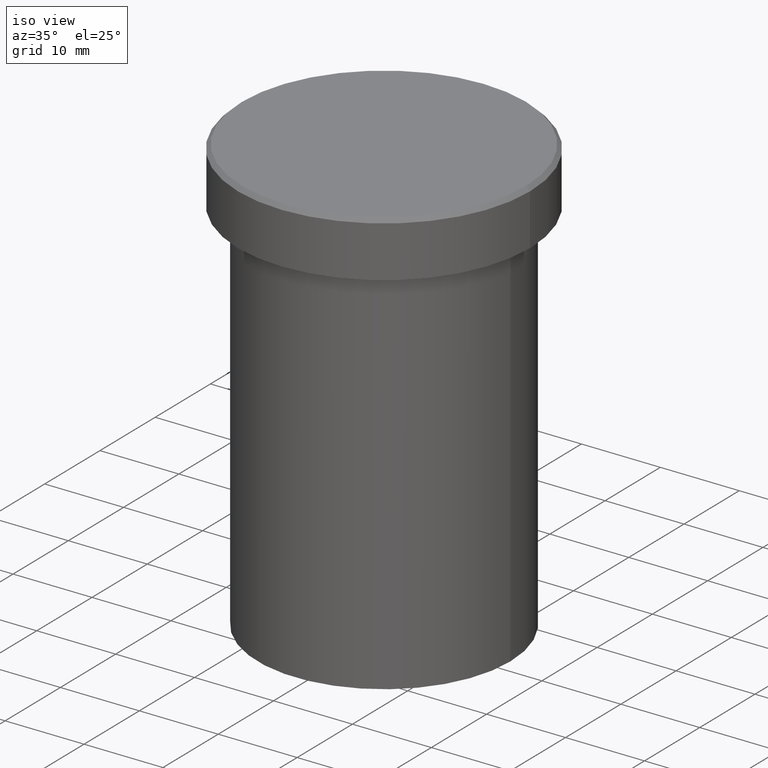
[diagram: clean part render]
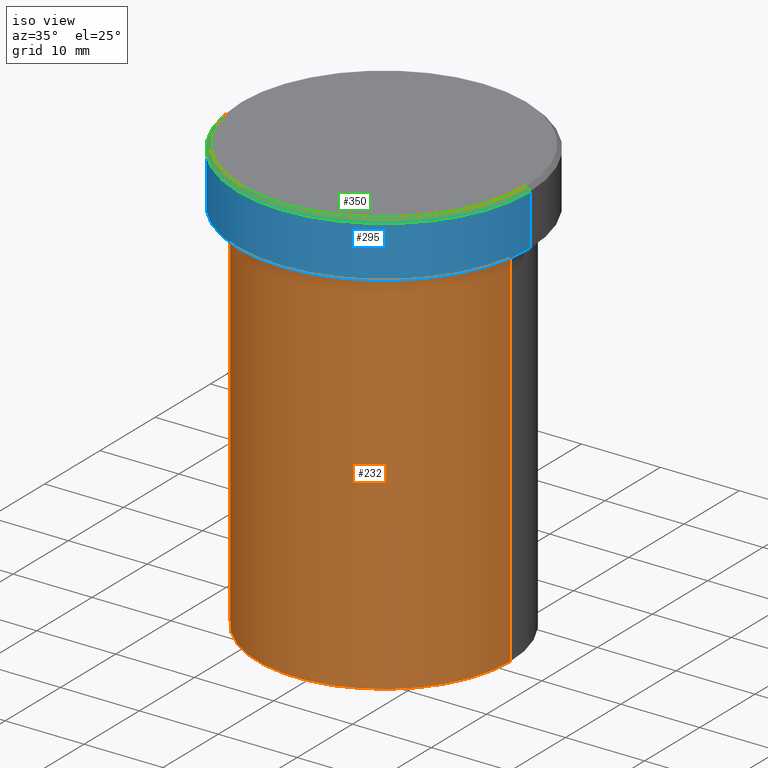
[diagram: same view with three faces highlighted in distinct colors, each labeled with its STEP entity id]
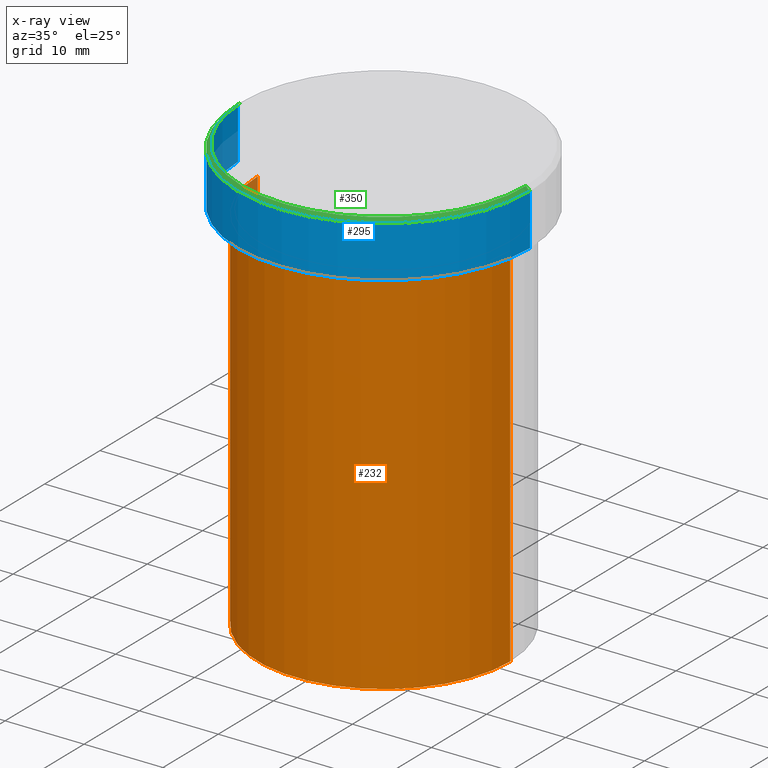
[diagram: x-ray of the same camera — body ghosted, the three highlighted faces saturated]
A machine part, iso view with three faces highlighted in distinct colors.
The next image is the same camera in x-ray (body ghosted, the three faces saturated) — at least one of them is partly hidden behind the body in this view.
Their STEP definitions:

[orange] entity #232 — the highlighted cylindrical surface (partial cylindrical patch) has radius 16 mm, axis along (-0, -0, 1).
#12 = EDGE_CURVE ( 'NONE', #120, #148, #29, .T. ) ;
#17 = DIRECTION ( 'NONE',  ( 1.000000000000000000, 0.000000000000000000, 0.000000000000000000 ) ) ;
#29 = LINE ( 'NONE', #382, #145 ) ;
#41 = DIRECTION ( 'NONE',  ( -0.000000000000000000, -0.000000000000000000, 1.000000000000000000 ) ) ;
#50 = AXIS2_PLACEMENT_3D ( 'NONE', #217, #62, #280 ) ;
#61 = AXIS2_PLACEMENT_3D ( 'NONE', #368, #178, #17 ) ;
#62 = DIRECTION ( 'NONE',  ( -0.000000000000000000, -0.000000000000000000, 1.000000000000000000 ) ) ;
#69 = ORIENTED_EDGE ( 'NONE', *, *, #12, .T. ) ;
#83 = DIRECTION ( 'NONE',  ( 1.000000000000000000, 0.000000000000000000, 0.000000000000000000 ) ) ;
#84 = EDGE_LOOP ( 'NONE', ( #273, #90, #69, #99 ) ) ;
#90 = ORIENTED_EDGE ( 'NONE', *, *, #112, .T. ) ;
#91 = CYLINDRICAL_SURFACE ( 'NONE', #167, 16.00000000000000000 ) ;
#99 = ORIENTED_EDGE ( 'NONE', *, *, #265, .F. ) ;
#100 = DIRECTION ( 'NONE',  ( -0.000000000000000000, -0.000000000000000000, 1.000000000000000000 ) ) ;
#106 = CIRCLE ( 'NONE', #61, 16.00000000000000000 ) ;
#112 = EDGE_CURVE ( 'NONE', #329, #120, #196, .T. ) ;
#113 = CARTESIAN_POINT ( 'NONE',  ( 0.000000000000000000, 0.000000000000000000, 0.000000000000000000 ) ) ;
#120 = VERTEX_POINT ( 'NONE', #355 ) ;
#135 = EDGE_CURVE ( 'NONE', #329, #248, #323, .T. ) ;
#142 = CARTESIAN_POINT ( 'NONE',  ( -16.00000000000000000, 1.959434878635765131E-15, -8.000000000000000000 ) ) ;
#145 = VECTOR ( 'NONE', #100, 1000.000000000000000 ) ;
#148 = VERTEX_POINT ( 'NONE', #259 ) ;
#167 = AXIS2_PLACEMENT_3D ( 'NONE', #113, #303, #83 ) ;
#178 = DIRECTION ( 'NONE',  ( -0.000000000000000000, -0.000000000000000000, 1.000000000000000000 ) ) ;
#195 = CARTESIAN_POINT ( 'NONE',  ( -16.00000000000000000, 1.959434878635765131E-15, 0.000000000000000000 ) ) ;
#196 = CIRCLE ( 'NONE', #50, 16.00000000000000000 ) ;
#217 = CARTESIAN_POINT ( 'NONE',  ( 0.000000000000000000, 0.000000000000000000, -54.99999999999999289 ) ) ;
#232 = ADVANCED_FACE ( 'NONE', ( #342 ), #91, .T. ) ;
#236 = CARTESIAN_POINT ( 'NONE',  ( -16.00000000000000000, 1.959434878635765131E-15, -54.99999999999999289 ) ) ;
#248 = VERTEX_POINT ( 'NONE', #142 ) ;
#259 = CARTESIAN_POINT ( 'NONE',  ( 16.00000000000000000, 0.000000000000000000, -8.000000000000000000 ) ) ;
#265 = EDGE_CURVE ( 'NONE', #248, #148, #106, .T. ) ;
#273 = ORIENTED_EDGE ( 'NONE', *, *, #135, .F. ) ;
#280 = DIRECTION ( 'NONE',  ( 1.000000000000000000, 0.000000000000000000, 0.000000000000000000 ) ) ;
#303 = DIRECTION ( 'NONE',  ( -0.000000000000000000, -0.000000000000000000, 1.000000000000000000 ) ) ;
#323 = LINE ( 'NONE', #195, #343 ) ;
#329 = VERTEX_POINT ( 'NONE', #236 ) ;
#342 = FACE_OUTER_BOUND ( 'NONE', #84, .T. ) ;
#343 = VECTOR ( 'NONE', #41, 1000.000000000000000 ) ;
#355 = CARTESIAN_POINT ( 'NONE',  ( 16.00000000000000000, 0.000000000000000000, -54.99999999999999289 ) ) ;
#368 = CARTESIAN_POINT ( 'NONE',  ( 0.000000000000000000, 0.000000000000000000, -8.000000000000000000 ) ) ;
#382 = CARTESIAN_POINT ( 'NONE',  ( 16.00000000000000000, 0.000000000000000000, 0.000000000000000000 ) ) ;

[blue] entity #295 — the highlighted cylindrical surface (partial cylindrical patch) has radius 18.5 mm, axis along (-0, -0, 1).
#4 = CARTESIAN_POINT ( 'NONE',  ( -18.50000000000000000, 2.265596578422603396E-15, -0.5000000000000143219 ) ) ;
#10 = LINE ( 'NONE', #346, #45 ) ;
#28 = CARTESIAN_POINT ( 'NONE',  ( 18.50000000000000000, 0.000000000000000000, -6.999999999999999112 ) ) ;
#31 = EDGE_CURVE ( 'NONE', #49, #375, #122, .T. ) ;
#39 = ORIENTED_EDGE ( 'NONE', *, *, #74, .F. ) ;
#45 = VECTOR ( 'NONE', #255, 1000.000000000000000 ) ;
#47 = CARTESIAN_POINT ( 'NONE',  ( -18.50000000000000000, 2.265596578422603396E-15, -6.999999999999999112 ) ) ;
#49 = VERTEX_POINT ( 'NONE', #126 ) ;
#71 = ORIENTED_EDGE ( 'NONE', *, *, #155, .T. ) ;
#74 = EDGE_CURVE ( 'NONE', #181, #375, #10, .T. ) ;
#76 = VECTOR ( 'NONE', #234, 1000.000000000000000 ) ;
#89 = EDGE_CURVE ( 'NONE', #181, #315, #275, .T. ) ;
#102 = CARTESIAN_POINT ( 'NONE',  ( 0.000000000000000000, 0.000000000000000000, -0.5000000000000143219 ) ) ;
#111 = DIRECTION ( 'NONE',  ( 1.000000000000000000, 0.000000000000000000, 0.000000000000000000 ) ) ;
#122 = CIRCLE ( 'NONE', #132, 18.50000000000000000 ) ;
#126 = CARTESIAN_POINT ( 'NONE',  ( 18.50000000000000000, 0.000000000000000000, -0.5000000000000143219 ) ) ;
#128 = DIRECTION ( 'NONE',  ( 1.000000000000000000, 0.000000000000000000, 0.000000000000000000 ) ) ;
#132 = AXIS2_PLACEMENT_3D ( 'NONE', #102, #318, #287 ) ;
#155 = EDGE_CURVE ( 'NONE', #315, #49, #226, .T. ) ;
#177 = ORIENTED_EDGE ( 'NONE', *, *, #89, .T. ) ;
#181 = VERTEX_POINT ( 'NONE', #47 ) ;
#226 = LINE ( 'NONE', #403, #76 ) ;
#228 = AXIS2_PLACEMENT_3D ( 'NONE', #291, #386, #128 ) ;
#234 = DIRECTION ( 'NONE',  ( -0.000000000000000000, -0.000000000000000000, 1.000000000000000000 ) ) ;
#241 = AXIS2_PLACEMENT_3D ( 'NONE', #268, #311, #111 ) ;
#245 = ORIENTED_EDGE ( 'NONE', *, *, #31, .T. ) ;
#246 = FACE_OUTER_BOUND ( 'NONE', #349, .T. ) ;
#255 = DIRECTION ( 'NONE',  ( -0.000000000000000000, -0.000000000000000000, 1.000000000000000000 ) ) ;
#268 = CARTESIAN_POINT ( 'NONE',  ( 0.000000000000000000, 0.000000000000000000, 0.000000000000000000 ) ) ;
#275 = CIRCLE ( 'NONE', #228, 18.50000000000000000 ) ;
#287 = DIRECTION ( 'NONE',  ( 1.000000000000000000, 0.000000000000000000, 0.000000000000000000 ) ) ;
#291 = CARTESIAN_POINT ( 'NONE',  ( 0.000000000000000000, 0.000000000000000000, -6.999999999999999112 ) ) ;
#295 = ADVANCED_FACE ( 'NONE', ( #246 ), #376, .T. ) ;
#311 = DIRECTION ( 'NONE',  ( -0.000000000000000000, -0.000000000000000000, 1.000000000000000000 ) ) ;
#315 = VERTEX_POINT ( 'NONE', #28 ) ;
#318 = DIRECTION ( 'NONE',  ( 0.000000000000000000, 0.000000000000000000, -1.000000000000000000 ) ) ;
#346 = CARTESIAN_POINT ( 'NONE',  ( -18.50000000000000000, 2.265596578422603396E-15, 0.000000000000000000 ) ) ;
#349 = EDGE_LOOP ( 'NONE', ( #39, #177, #71, #245 ) ) ;
#375 = VERTEX_POINT ( 'NONE', #4 ) ;
#376 = CYLINDRICAL_SURFACE ( 'NONE', #241, 18.50000000000000000 ) ;
#386 = DIRECTION ( 'NONE',  ( -0.000000000000000000, -0.000000000000000000, 1.000000000000000000 ) ) ;
#403 = CARTESIAN_POINT ( 'NONE',  ( 18.50000000000000000, 0.000000000000000000, 0.000000000000000000 ) ) ;

[green] entity #350 — the highlighted conical surface has half-angle 45 deg.
#1 = CARTESIAN_POINT ( 'NONE',  ( 0.000000000000000000, 0.000000000000000000, 0.000000000000000000 ) ) ;
#4 = CARTESIAN_POINT ( 'NONE',  ( -18.50000000000000000, 2.265596578422603396E-15, -0.5000000000000143219 ) ) ;
#31 = EDGE_CURVE ( 'NONE', #49, #375, #122, .T. ) ;
#40 = DIRECTION ( 'NONE',  ( 0.000000000000000000, 0.000000000000000000, -1.000000000000000000 ) ) ;
#44 = EDGE_CURVE ( 'NONE', #399, #118, #190, .T. ) ;
#49 = VERTEX_POINT ( 'NONE', #126 ) ;
#58 = CARTESIAN_POINT ( 'NONE',  ( -17.99999999999998224, 0.000000000000000000, 0.000000000000000000 ) ) ;
#85 = LINE ( 'NONE', #171, #358 ) ;
#88 = DIRECTION ( 'NONE',  ( 0.7071067811865500152, 8.659560562354962440E-17, -0.7071067811865451302 ) ) ;
#102 = CARTESIAN_POINT ( 'NONE',  ( 0.000000000000000000, 0.000000000000000000, -0.5000000000000143219 ) ) ;
#103 = FACE_OUTER_BOUND ( 'NONE', #309, .T. ) ;
#118 = VERTEX_POINT ( 'NONE', #152 ) ;
#122 = CIRCLE ( 'NONE', #132, 18.50000000000000000 ) ;
#123 = CONICAL_SURFACE ( 'NONE', #392, 17.99999999999998224, 0.7853981633974517207 ) ;
#126 = CARTESIAN_POINT ( 'NONE',  ( 18.50000000000000000, 0.000000000000000000, -0.5000000000000143219 ) ) ;
#132 = AXIS2_PLACEMENT_3D ( 'NONE', #102, #318, #287 ) ;
#152 = CARTESIAN_POINT ( 'NONE',  ( 17.99999999999998224, 2.234980408443918426E-15, 0.000000000000000000 ) ) ;
#158 = DIRECTION ( 'NONE',  ( -0.000000000000000000, -0.000000000000000000, 1.000000000000000000 ) ) ;
#160 = DIRECTION ( 'NONE',  ( -1.000000000000000000, 0.000000000000000000, 0.000000000000000000 ) ) ;
#170 = ORIENTED_EDGE ( 'NONE', *, *, #200, .F. ) ;
#171 = CARTESIAN_POINT ( 'NONE',  ( 17.99999999999998224, 2.204364238465233456E-15, 0.000000000000000000 ) ) ;
#190 = CIRCLE ( 'NONE', #297, 17.99999999999998224 ) ;
#200 = EDGE_CURVE ( 'NONE', #118, #49, #85, .T. ) ;
#204 = ORIENTED_EDGE ( 'NONE', *, *, #279, .T. ) ;
#243 = ORIENTED_EDGE ( 'NONE', *, *, #44, .F. ) ;
#256 = DIRECTION ( 'NONE',  ( 1.000000000000000000, 0.000000000000000000, 0.000000000000000000 ) ) ;
#276 = DIRECTION ( 'NONE',  ( -0.7071067811865500152, 0.000000000000000000, -0.7071067811865451302 ) ) ;
#278 = LINE ( 'NONE', #58, #282 ) ;
#279 = EDGE_CURVE ( 'NONE', #399, #375, #278, .T. ) ;
#282 = VECTOR ( 'NONE', #276, 1000.000000000000114 ) ;
#287 = DIRECTION ( 'NONE',  ( 1.000000000000000000, 0.000000000000000000, 0.000000000000000000 ) ) ;
#297 = AXIS2_PLACEMENT_3D ( 'NONE', #1, #158, #256 ) ;
#309 = EDGE_LOOP ( 'NONE', ( #170, #243, #204, #339 ) ) ;
#318 = DIRECTION ( 'NONE',  ( 0.000000000000000000, 0.000000000000000000, -1.000000000000000000 ) ) ;
#320 = CARTESIAN_POINT ( 'NONE',  ( -17.99999999999998224, 0.000000000000000000, 0.000000000000000000 ) ) ;
#339 = ORIENTED_EDGE ( 'NONE', *, *, #31, .F. ) ;
#350 = ADVANCED_FACE ( 'NONE', ( #103 ), #123, .T. ) ;
#358 = VECTOR ( 'NONE', #88, 1000.000000000000114 ) ;
#375 = VERTEX_POINT ( 'NONE', #4 ) ;
#383 = CARTESIAN_POINT ( 'NONE',  ( 0.000000000000000000, 0.000000000000000000, 0.000000000000000000 ) ) ;
#392 = AXIS2_PLACEMENT_3D ( 'NONE', #383, #40, #160 ) ;
#399 = VERTEX_POINT ( 'NONE', #320 ) ;